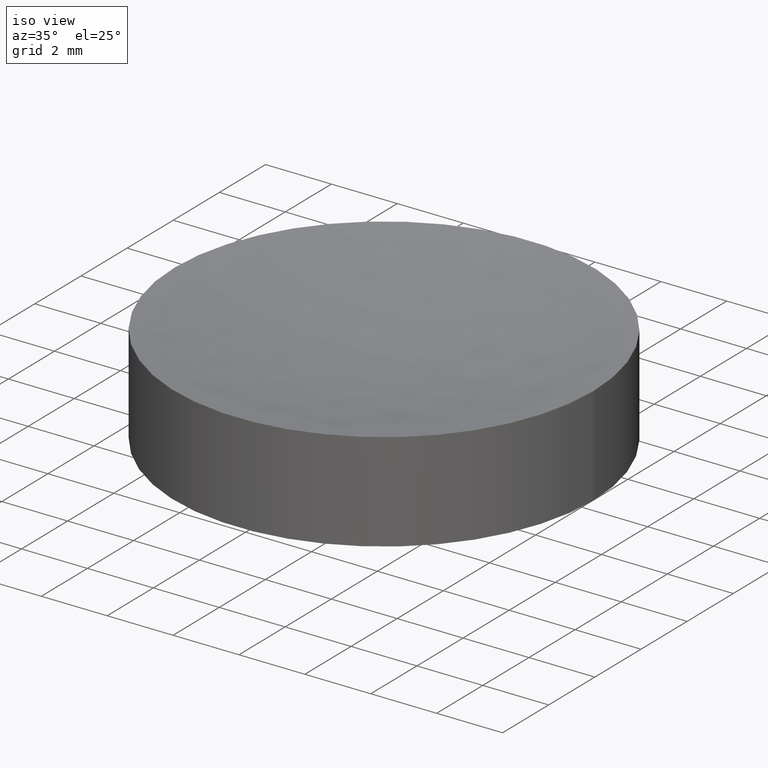
[diagram: clean part render]
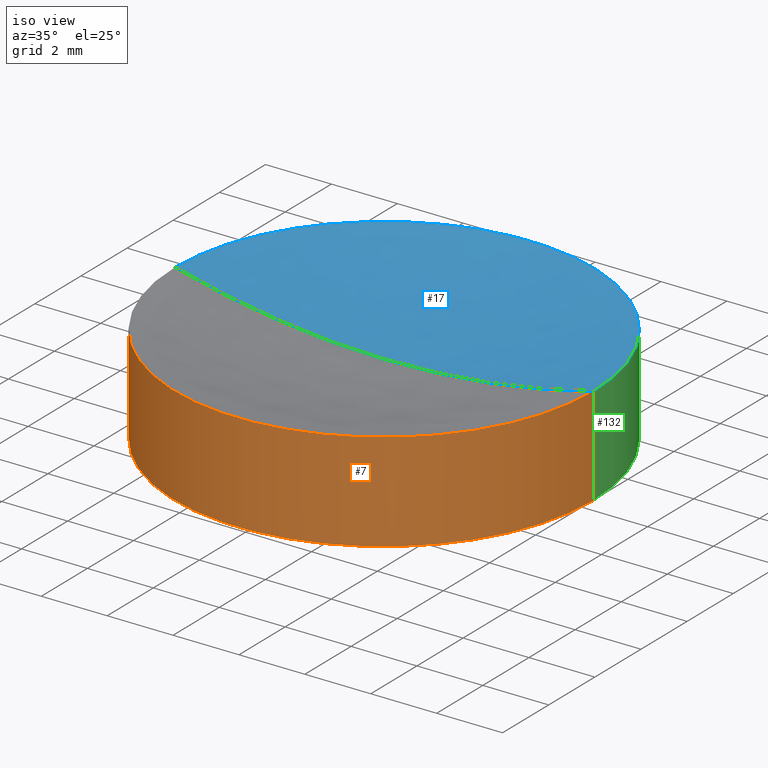
[diagram: same view with three faces highlighted in distinct colors, each labeled with its STEP entity id]
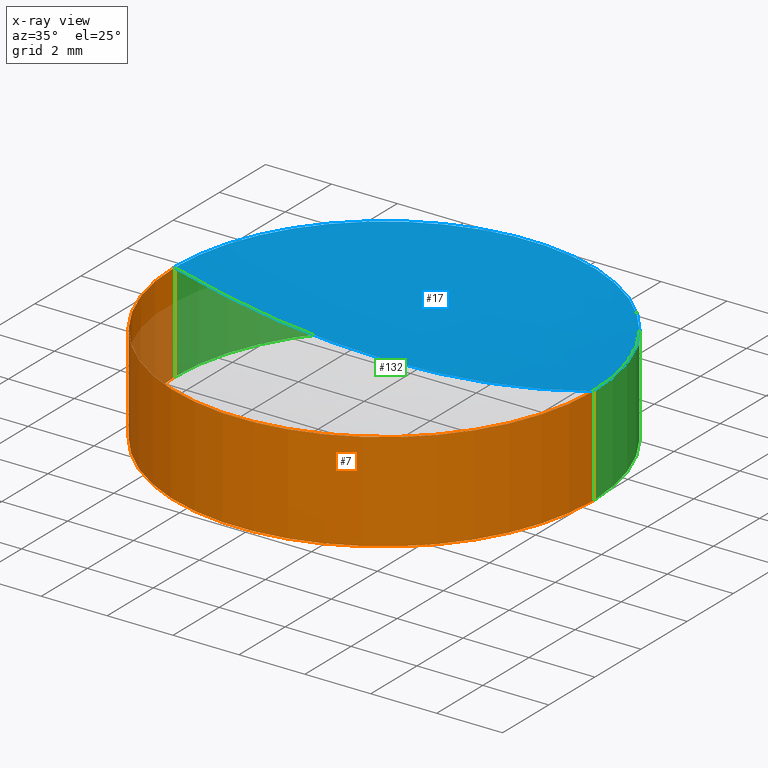
[diagram: x-ray of the same camera — body ghosted, the three highlighted faces saturated]
A machine part, iso view with three faces highlighted in distinct colors.
The next image is the same camera in x-ray (body ghosted, the three faces saturated) — at least one of them is partly hidden behind the body in this view.
Their STEP definitions:

[orange] entity #7 — the highlighted cylindrical surface (partial cylindrical patch) has radius 6.35 mm, axis along (-0, -0, -1).
#2 = DIRECTION ( 'NONE',  ( -0.000000000000000000, -0.000000000000000000, -1.000000000000000000 ) ) ;
#5 = LINE ( 'NONE', #35, #58 ) ;
#6 = CARTESIAN_POINT ( 'NONE',  ( 6.350000000000015632, 7.776507174585711884E-16, 2.999999999999999112 ) ) ;
#7 = ADVANCED_FACE ( 'NONE', ( #31 ), #102, .T. ) ;
#21 = CARTESIAN_POINT ( 'NONE',  ( -6.349999999999999645, 0.000000000000000000, 0.000000000000000000 ) ) ;
#31 = FACE_OUTER_BOUND ( 'NONE', #48, .T. ) ;
#33 = CARTESIAN_POINT ( 'NONE',  ( 0.000000000000000000, 0.000000000000000000, 3.000000000000000000 ) ) ;
#35 = CARTESIAN_POINT ( 'NONE',  ( -6.349999999999999645, 0.000000000000000000, 3.000000000000000000 ) ) ;
#48 = EDGE_LOOP ( 'NONE', ( #195, #80, #134, #49 ) ) ;
#49 = ORIENTED_EDGE ( 'NONE', *, *, #179, .T. ) ;
#51 = EDGE_CURVE ( 'NONE', #176, #77, #186, .T. ) ;
#58 = VECTOR ( 'NONE', #166, 1000.000000000000000 ) ;
#61 = AXIS2_PLACEMENT_3D ( 'NONE', #191, #118, #135 ) ;
#63 = DIRECTION ( 'NONE',  ( -1.000000000000000000, 0.000000000000000000, 0.000000000000000000 ) ) ;
#68 = DIRECTION ( 'NONE',  ( 1.000000000000000000, 0.000000000000000000, 0.000000000000000000 ) ) ;
#71 = CARTESIAN_POINT ( 'NONE',  ( 6.349999999999999645, 7.776507174585692163E-16, 3.000000000000000000 ) ) ;
#77 = VERTEX_POINT ( 'NONE', #115 ) ;
#78 = VECTOR ( 'NONE', #2, 1000.000000000000000 ) ;
#80 = ORIENTED_EDGE ( 'NONE', *, *, #51, .T. ) ;
#86 = CARTESIAN_POINT ( 'NONE',  ( 6.349999999999999645, 7.776507174585692163E-16, 0.000000000000000000 ) ) ;
#93 = VERTEX_POINT ( 'NONE', #86 ) ;
#98 = DIRECTION ( 'NONE',  ( -0.000000000000000000, -0.000000000000000000, -1.000000000000000000 ) ) ;
#100 = EDGE_CURVE ( 'NONE', #176, #93, #193, .T. ) ;
#101 = CARTESIAN_POINT ( 'NONE',  ( 4.336808689942017736E-15, 0.000000000000000000, 2.999999999999999112 ) ) ;
#102 = CYLINDRICAL_SURFACE ( 'NONE', #127, 6.349999999999999645 ) ;
#115 = CARTESIAN_POINT ( 'NONE',  ( -6.350000000000006750, 0.000000000000000000, 2.999999999999999112 ) ) ;
#118 = DIRECTION ( 'NONE',  ( 0.000000000000000000, 0.000000000000000000, 1.000000000000000000 ) ) ;
#127 = AXIS2_PLACEMENT_3D ( 'NONE', #33, #98, #63 ) ;
#134 = ORIENTED_EDGE ( 'NONE', *, *, #147, .T. ) ;
#135 = DIRECTION ( 'NONE',  ( 1.000000000000000000, 0.000000000000000000, 0.000000000000000000 ) ) ;
#147 = EDGE_CURVE ( 'NONE', #77, #156, #5, .T. ) ;
#149 = CIRCLE ( 'NONE', #61, 6.349999999999999645 ) ;
#156 = VERTEX_POINT ( 'NONE', #21 ) ;
#166 = DIRECTION ( 'NONE',  ( -0.000000000000000000, -0.000000000000000000, -1.000000000000000000 ) ) ;
#176 = VERTEX_POINT ( 'NONE', #6 ) ;
#179 = EDGE_CURVE ( 'NONE', #156, #93, #149, .T. ) ;
#186 = CIRCLE ( 'NONE', #199, 6.350000000000011191 ) ;
#189 = DIRECTION ( 'NONE',  ( -0.000000000000000000, -0.000000000000000000, -1.000000000000000000 ) ) ;
#191 = CARTESIAN_POINT ( 'NONE',  ( 0.000000000000000000, 0.000000000000000000, 0.000000000000000000 ) ) ;
#193 = LINE ( 'NONE', #71, #78 ) ;
#195 = ORIENTED_EDGE ( 'NONE', *, *, #100, .F. ) ;
#199 = AXIS2_PLACEMENT_3D ( 'NONE', #101, #189, #68 ) ;

[blue] entity #17 — the highlighted spherical surface has radius 25 mm.
#4 = EDGE_CURVE ( 'NONE', #176, #29, #129, .T. ) ;
#6 = CARTESIAN_POINT ( 'NONE',  ( 6.350000000000015632, 7.776507174585711884E-16, 2.999999999999999112 ) ) ;
#13 = CIRCLE ( 'NONE', #183, 6.350000000000011191 ) ;
#17 = ADVANCED_FACE ( 'NONE', ( #163 ), #184, .F. ) ;
#18 = AXIS2_PLACEMENT_3D ( 'NONE', #113, #52, #187 ) ;
#29 = VERTEX_POINT ( 'NONE', #64 ) ;
#30 = EDGE_CURVE ( 'NONE', #77, #29, #111, .T. ) ;
#52 = DIRECTION ( 'NONE',  ( 0.000000000000000000, 1.000000000000000000, -0.000000000000000000 ) ) ;
#53 = AXIS2_PLACEMENT_3D ( 'NONE', #161, #143, #173 ) ;
#54 = DIRECTION ( 'NONE',  ( 1.000000000000000000, 0.000000000000000000, 0.000000000000000000 ) ) ;
#62 = EDGE_LOOP ( 'NONE', ( #182, #144, #95 ) ) ;
#64 = CARTESIAN_POINT ( 'NONE',  ( 5.867617188876208666E-15, 0.000000000000000000, 2.180105458827096054 ) ) ;
#77 = VERTEX_POINT ( 'NONE', #115 ) ;
#91 = AXIS2_PLACEMENT_3D ( 'NONE', #97, #128, #190 ) ;
#95 = ORIENTED_EDGE ( 'NONE', *, *, #4, .F. ) ;
#97 = CARTESIAN_POINT ( 'NONE',  ( 4.336808689942017736E-15, 0.000000000000000000, 27.18010545882709650 ) ) ;
#106 = CARTESIAN_POINT ( 'NONE',  ( 4.336808689942017736E-15, 0.000000000000000000, 2.999999999999999112 ) ) ;
#111 = CIRCLE ( 'NONE', #91, 25.00000000000000000 ) ;
#113 = CARTESIAN_POINT ( 'NONE',  ( 4.336808689942017736E-15, 0.000000000000000000, 27.18010545882709650 ) ) ;
#115 = CARTESIAN_POINT ( 'NONE',  ( -6.350000000000006750, 0.000000000000000000, 2.999999999999999112 ) ) ;
#117 = EDGE_CURVE ( 'NONE', #77, #176, #13, .T. ) ;
#128 = DIRECTION ( 'NONE',  ( 1.224646799147353207E-16, -1.000000000000000000, 0.000000000000000000 ) ) ;
#129 = CIRCLE ( 'NONE', #18, 25.00000000000000000 ) ;
#143 = DIRECTION ( 'NONE',  ( 0.000000000000000000, -1.000000000000000000, -0.000000000000000000 ) ) ;
#144 = ORIENTED_EDGE ( 'NONE', *, *, #30, .T. ) ;
#161 = CARTESIAN_POINT ( 'NONE',  ( 4.336808689942017736E-15, 0.000000000000000000, 27.18010545882709650 ) ) ;
#163 = FACE_OUTER_BOUND ( 'NONE', #62, .T. ) ;
#173 = DIRECTION ( 'NONE',  ( 1.000000000000000000, 0.000000000000000000, 0.000000000000000000 ) ) ;
#176 = VERTEX_POINT ( 'NONE', #6 ) ;
#177 = DIRECTION ( 'NONE',  ( -0.000000000000000000, -0.000000000000000000, -1.000000000000000000 ) ) ;
#182 = ORIENTED_EDGE ( 'NONE', *, *, #117, .F. ) ;
#183 = AXIS2_PLACEMENT_3D ( 'NONE', #106, #177, #54 ) ;
#184 = SPHERICAL_SURFACE ( 'NONE', #53, 25.00000000000000000 ) ;
#187 = DIRECTION ( 'NONE',  ( 0.000000000000000000, 0.000000000000000000, 1.000000000000000000 ) ) ;
#190 = DIRECTION ( 'NONE',  ( 1.000000000000000000, 1.224646799147353207E-16, 0.000000000000000000 ) ) ;

[green] entity #132 — the highlighted cylindrical surface (partial cylindrical patch) has radius 6.35 mm, axis along (-0, -0, -1).
#2 = DIRECTION ( 'NONE',  ( -0.000000000000000000, -0.000000000000000000, -1.000000000000000000 ) ) ;
#5 = LINE ( 'NONE', #35, #58 ) ;
#6 = CARTESIAN_POINT ( 'NONE',  ( 6.350000000000015632, 7.776507174585711884E-16, 2.999999999999999112 ) ) ;
#13 = CIRCLE ( 'NONE', #183, 6.350000000000011191 ) ;
#21 = CARTESIAN_POINT ( 'NONE',  ( -6.349999999999999645, 0.000000000000000000, 0.000000000000000000 ) ) ;
#35 = CARTESIAN_POINT ( 'NONE',  ( -6.349999999999999645, 0.000000000000000000, 3.000000000000000000 ) ) ;
#36 = DIRECTION ( 'NONE',  ( -1.000000000000000000, 0.000000000000000000, 0.000000000000000000 ) ) ;
#38 = CARTESIAN_POINT ( 'NONE',  ( 0.000000000000000000, 0.000000000000000000, 3.000000000000000000 ) ) ;
#45 = ORIENTED_EDGE ( 'NONE', *, *, #100, .T. ) ;
#54 = DIRECTION ( 'NONE',  ( 1.000000000000000000, 0.000000000000000000, 0.000000000000000000 ) ) ;
#58 = VECTOR ( 'NONE', #166, 1000.000000000000000 ) ;
#71 = CARTESIAN_POINT ( 'NONE',  ( 6.349999999999999645, 7.776507174585692163E-16, 3.000000000000000000 ) ) ;
#77 = VERTEX_POINT ( 'NONE', #115 ) ;
#78 = VECTOR ( 'NONE', #2, 1000.000000000000000 ) ;
#81 = EDGE_CURVE ( 'NONE', #93, #156, #138, .T. ) ;
#85 = CARTESIAN_POINT ( 'NONE',  ( 0.000000000000000000, 0.000000000000000000, 0.000000000000000000 ) ) ;
#86 = CARTESIAN_POINT ( 'NONE',  ( 6.349999999999999645, 7.776507174585692163E-16, 0.000000000000000000 ) ) ;
#87 = AXIS2_PLACEMENT_3D ( 'NONE', #85, #103, #148 ) ;
#93 = VERTEX_POINT ( 'NONE', #86 ) ;
#100 = EDGE_CURVE ( 'NONE', #176, #93, #193, .T. ) ;
#103 = DIRECTION ( 'NONE',  ( 0.000000000000000000, 0.000000000000000000, 1.000000000000000000 ) ) ;
#106 = CARTESIAN_POINT ( 'NONE',  ( 4.336808689942017736E-15, 0.000000000000000000, 2.999999999999999112 ) ) ;
#108 = ORIENTED_EDGE ( 'NONE', *, *, #81, .T. ) ;
#115 = CARTESIAN_POINT ( 'NONE',  ( -6.350000000000006750, 0.000000000000000000, 2.999999999999999112 ) ) ;
#116 = CYLINDRICAL_SURFACE ( 'NONE', #198, 6.349999999999999645 ) ;
#117 = EDGE_CURVE ( 'NONE', #77, #176, #13, .T. ) ;
#122 = ORIENTED_EDGE ( 'NONE', *, *, #117, .T. ) ;
#126 = EDGE_LOOP ( 'NONE', ( #122, #45, #108, #197 ) ) ;
#132 = ADVANCED_FACE ( 'NONE', ( #164 ), #116, .T. ) ;
#138 = CIRCLE ( 'NONE', #87, 6.349999999999999645 ) ;
#147 = EDGE_CURVE ( 'NONE', #77, #156, #5, .T. ) ;
#148 = DIRECTION ( 'NONE',  ( 1.000000000000000000, 0.000000000000000000, 0.000000000000000000 ) ) ;
#151 = DIRECTION ( 'NONE',  ( -0.000000000000000000, -0.000000000000000000, -1.000000000000000000 ) ) ;
#156 = VERTEX_POINT ( 'NONE', #21 ) ;
#164 = FACE_OUTER_BOUND ( 'NONE', #126, .T. ) ;
#166 = DIRECTION ( 'NONE',  ( -0.000000000000000000, -0.000000000000000000, -1.000000000000000000 ) ) ;
#176 = VERTEX_POINT ( 'NONE', #6 ) ;
#177 = DIRECTION ( 'NONE',  ( -0.000000000000000000, -0.000000000000000000, -1.000000000000000000 ) ) ;
#183 = AXIS2_PLACEMENT_3D ( 'NONE', #106, #177, #54 ) ;
#193 = LINE ( 'NONE', #71, #78 ) ;
#197 = ORIENTED_EDGE ( 'NONE', *, *, #147, .F. ) ;
#198 = AXIS2_PLACEMENT_3D ( 'NONE', #38, #151, #36 ) ;